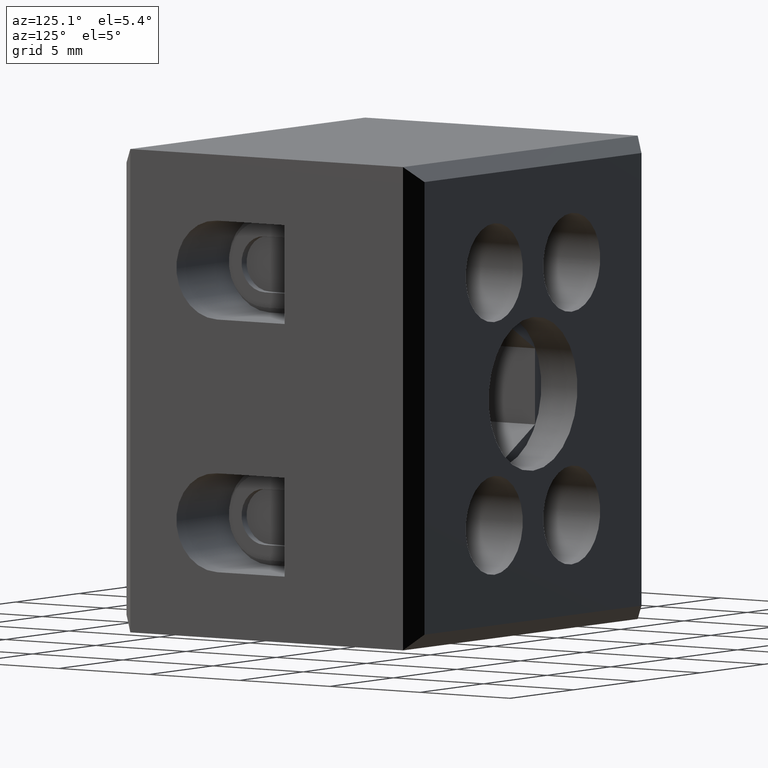
[diagram: clean part render]
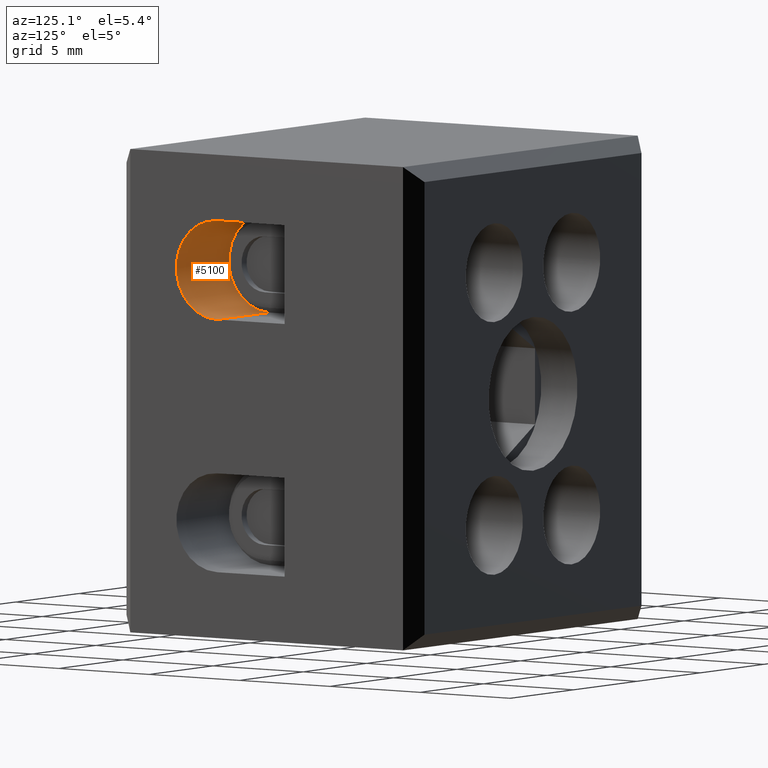
[diagram: same view with one face highlighted and labeled with its STEP entity id]
A machine part, auxiliary view. The second image highlights one B-rep face of the part: STEP entity #5100.
In plain terms, the highlighted cylindrical surface (partial cylindrical patch) has radius 2.25 mm, axis along (-1, 0, 0).
Its self-contained STEP definition (entity closure, byte-faithful):
#83 = VERTEX_POINT ( 'NONE', #302 ) ;
#150 = VERTEX_POINT ( 'NONE', #375 ) ;
#179 = VERTEX_POINT ( 'NONE', #438 ) ;
#220 = VERTEX_POINT ( 'NONE', #498 ) ;
#302 = CARTESIAN_POINT ( 'NONE',  ( 14.10494690227853600, 5.500000000000000000, -7.245795416184508400 ) ) ;
#375 = CARTESIAN_POINT ( 'NONE',  ( 18.25491892012612300, 5.500000000000000000, -7.245795416184508400 ) ) ;
#438 = CARTESIAN_POINT ( 'NONE',  ( 14.10494690227853600, 5.500000000000000000, -2.745795416184508000 ) ) ;
#498 = CARTESIAN_POINT ( 'NONE',  ( 18.25491892012612300, 5.500000000000000000, -2.745795416184508000 ) ) ;
#744 = LINE ( 'NONE', #751, #3250 ) ;
#751 = CARTESIAN_POINT ( 'NONE',  ( 33.50491892012612300, 5.500000000000000000, -7.245795416184508400 ) ) ;
#752 = DIRECTION ( 'NONE',  ( -1.000000000000000000, 0.0000000000000000000, 0.0000000000000000000 ) ) ;
#781 = LINE ( 'NONE', #786, #3285 ) ;
#786 = CARTESIAN_POINT ( 'NONE',  ( 33.50491892012612300, 5.500000000000000000, -2.745795416184508000 ) ) ;
#797 = DIRECTION ( 'NONE',  ( -1.000000000000000000, 0.0000000000000000000, 0.0000000000000000000 ) ) ;
#1030 = AXIS2_PLACEMENT_3D ( 'NONE', #2558, #2563, #2565 ) ;
#1318 = EDGE_LOOP ( 'NONE', ( #1671, #1704, #1695, #1653 ) ) ;
#1544 = EDGE_CURVE ( 'NONE', #150, #83, #744, .T. ) ;
#1573 = EDGE_CURVE ( 'NONE', #220, #179, #781, .T. ) ;
#1635 = EDGE_CURVE ( 'NONE', #179, #83, #3375, .T. ) ;
#1653 = ORIENTED_EDGE ( 'NONE', *, *, #2380, .T. ) ;
#1671 = ORIENTED_EDGE ( 'NONE', *, *, #1544, .T. ) ;
#1695 = ORIENTED_EDGE ( 'NONE', *, *, #1573, .F. ) ;
#1704 = ORIENTED_EDGE ( 'NONE', *, *, #1635, .F. ) ;
#2380 = EDGE_CURVE ( 'NONE', #220, #150, #3597, .T. ) ;
#2557 = FACE_OUTER_BOUND ( 'NONE', #1318, .T. ) ;
#2558 = CARTESIAN_POINT ( 'NONE',  ( 33.50491892012612300, 5.500000000000000000, -4.995795416184507500 ) ) ;
#2559 = CYLINDRICAL_SURFACE ( 'NONE', #1030, 2.250000000000000000 ) ;
#2563 = DIRECTION ( 'NONE',  ( -1.000000000000000000, 0.0000000000000000000, 0.0000000000000000000 ) ) ;
#2565 = DIRECTION ( 'NONE',  ( 0.0000000000000000000, 0.0000000000000000000, 1.000000000000000000 ) ) ;
#3250 = VECTOR ( 'NONE', #752, 1000.000000000000000 ) ;
#3285 = VECTOR ( 'NONE', #797, 1000.000000000000000 ) ;
#3375 = CIRCLE ( 'NONE', #3401, 2.250000000000000400 ) ;
#3401 = AXIS2_PLACEMENT_3D ( 'NONE', #4524, #4521, #4522 ) ;
#3597 = CIRCLE ( 'NONE', #3598, 2.250000000000000000 ) ;
#3598 = AXIS2_PLACEMENT_3D ( 'NONE', #3884, #3886, #3880 ) ;
#3880 = DIRECTION ( 'NONE',  ( 0.0000000000000000000, 0.0000000000000000000, 1.000000000000000000 ) ) ;
#3884 = CARTESIAN_POINT ( 'NONE',  ( 18.25491892012612300, 5.500000000000000000, -4.995795416184507500 ) ) ;
#3886 = DIRECTION ( 'NONE',  ( 1.000000000000000000, -0.0000000000000000000, -0.0000000000000000000 ) ) ;
#4521 = DIRECTION ( 'NONE',  ( 1.000000000000000000, 0.0000000000000000000, -0.0000000000000000000 ) ) ;
#4522 = DIRECTION ( 'NONE',  ( 0.0000000000000000000, 0.0000000000000000000, -1.000000000000000000 ) ) ;
#4524 = CARTESIAN_POINT ( 'NONE',  ( 14.10494690227853600, 5.500000000000000000, -4.995795416184507500 ) ) ;
#5100 = ADVANCED_FACE ( 'NONE', ( #2557 ), #2559, .F. ) ;